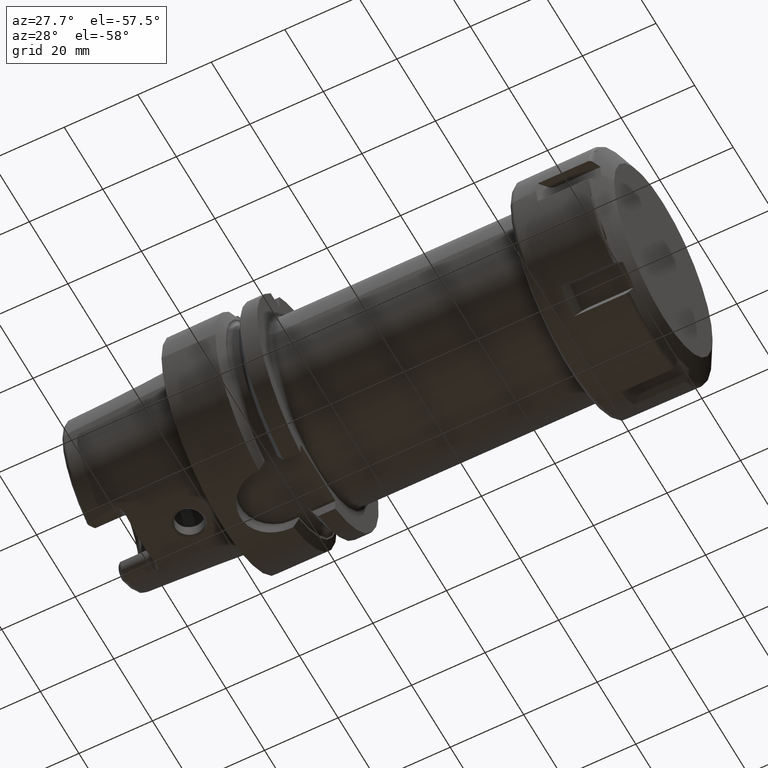
[diagram: clean part render]
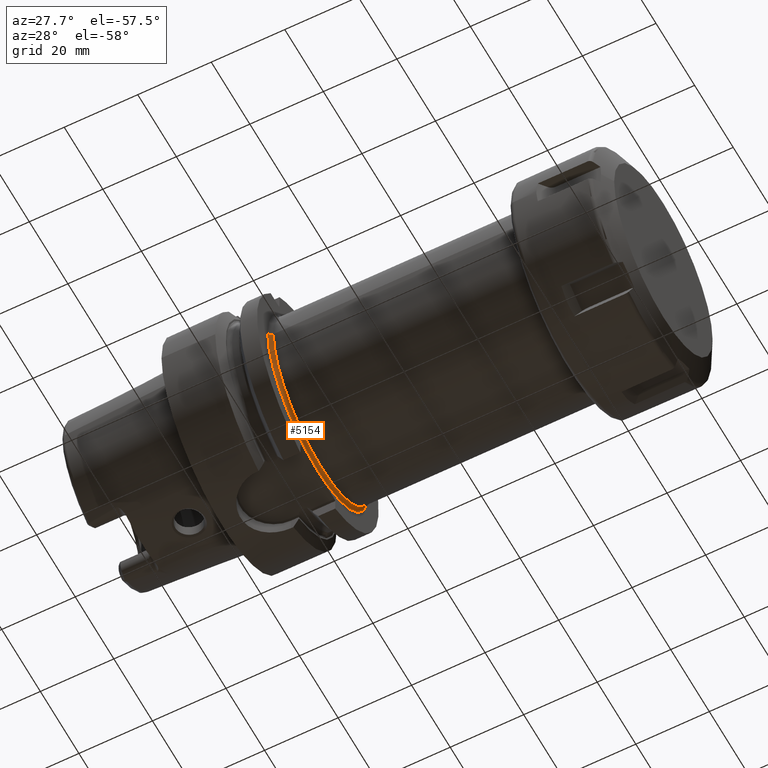
[diagram: same view with one face highlighted and labeled with its STEP entity id]
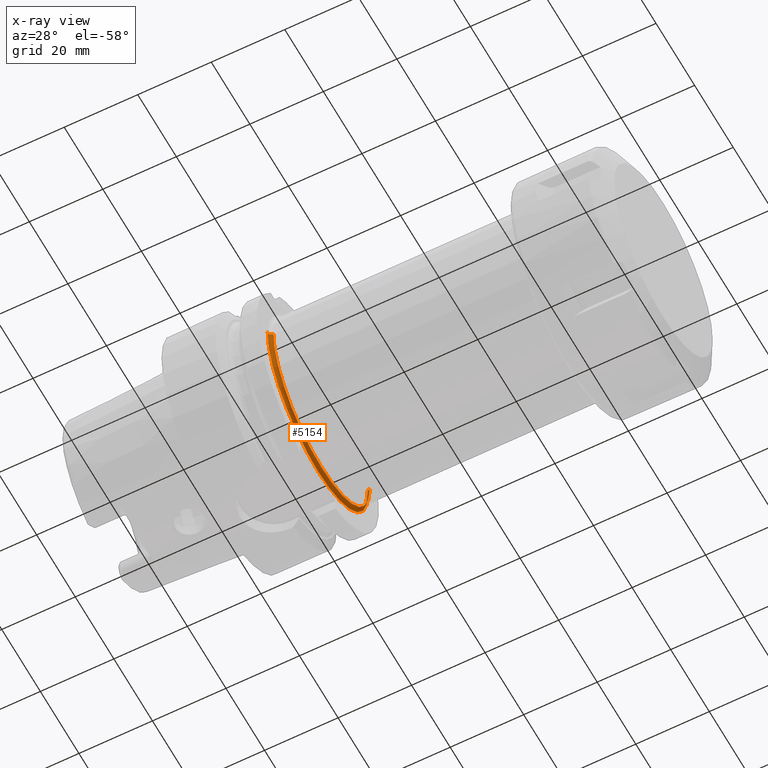
[diagram: x-ray of the same camera — body ghosted, the highlighted face saturated]
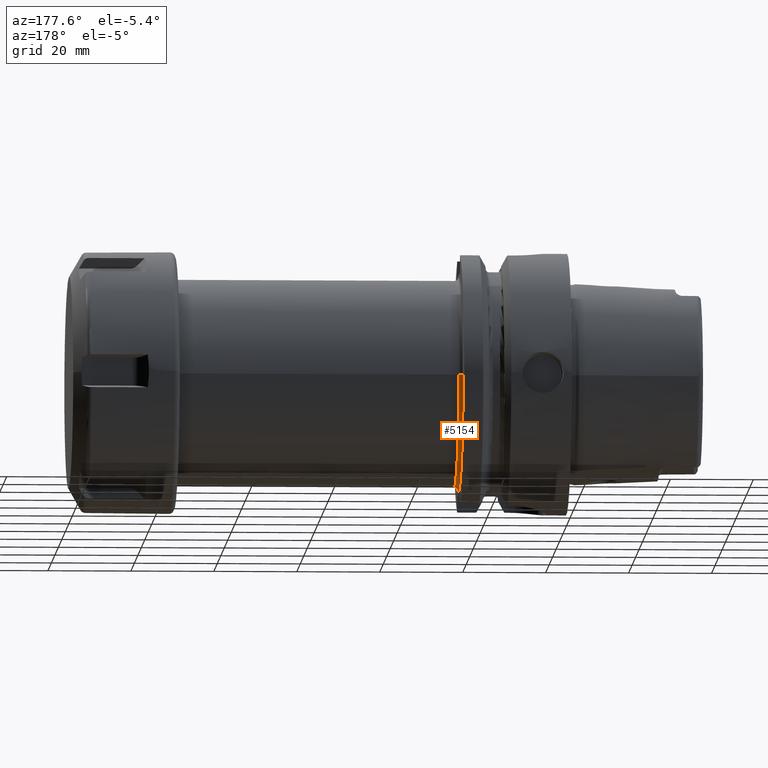
[diagram: same view with one face highlighted and labeled with its STEP entity id]
A machine part, auxiliary view. The second image highlights one B-rep face of the part: STEP entity #5154.
The next image is the same camera in x-ray: the body ghosted, the highlighted face saturated — about 1% of this face is hidden behind the body in this view.
A second angle (auxiliary view) of the same face is appended — the face is thin or edge-on in the first view.
In plain terms, the highlighted toroidal blend (fillet) surface has major radius 26 mm and minor (blend) radius 1 mm.
Its self-contained STEP definition (entity closure, byte-faithful):
#1708=CARTESIAN_POINT('',(2.6E1,0.E0,0.E0));
#1709=DIRECTION('',(1.E0,0.E0,0.E0));
#1710=DIRECTION('',(0.E0,-1.E0,0.E0));
#1711=AXIS2_PLACEMENT_3D('',#1708,#1709,#1710);
#1956=CARTESIAN_POINT('',(2.7E1,-2.6E1,-2.207956040223E-14));
#1957=DIRECTION('',(0.E0,0.E0,-1.E0));
#1958=DIRECTION('',(-1.E0,0.E0,0.E0));
#1959=AXIS2_PLACEMENT_3D('',#1956,#1957,#1958);
#1961=CARTESIAN_POINT('',(2.7E1,2.6E1,0.E0));
#1962=DIRECTION('',(0.E0,0.E0,1.E0));
#1963=DIRECTION('',(-1.E0,-1.065814103640E-14,0.E0));
#1964=AXIS2_PLACEMENT_3D('',#1961,#1962,#1963);
#1976=CARTESIAN_POINT('',(2.7E1,0.E0,0.E0));
#1977=DIRECTION('',(1.E0,0.E0,0.E0));
#1978=DIRECTION('',(0.E0,-1.E0,0.E0));
#1979=AXIS2_PLACEMENT_3D('',#1976,#1977,#1978);
#3036=CARTESIAN_POINT('',(2.6E1,-2.6E1,-2.946080226777E-14));
#3037=CARTESIAN_POINT('',(2.6E1,2.6E1,1.473040113388E-14));
#3038=VERTEX_POINT('',#3036);
#3039=VERTEX_POINT('',#3037);
#3040=CARTESIAN_POINT('',(2.7E1,-2.5E1,0.E0));
#3041=CARTESIAN_POINT('',(2.7E1,2.5E1,0.E0));
#3042=VERTEX_POINT('',#3040);
#3043=VERTEX_POINT('',#3041);
#5140=CARTESIAN_POINT('',(2.7E1,0.E0,0.E0));
#5141=DIRECTION('',(1.E0,0.E0,0.E0));
#5142=DIRECTION('',(0.E0,-9.999952710842E-1,3.075355152292E-3));
#5143=AXIS2_PLACEMENT_3D('',#5140,#5141,#5142);
#5144=TOROIDAL_SURFACE('',#5143,2.6E1,1.E0);
#5145=ORIENTED_EDGE('',*,*,#4847,.F.);
#5147=ORIENTED_EDGE('',*,*,#5146,.T.);
#5149=ORIENTED_EDGE('',*,*,#5148,.T.);
#5151=ORIENTED_EDGE('',*,*,#5150,.F.);
#5152=EDGE_LOOP('',(#5145,#5147,#5149,#5151));
#5153=FACE_OUTER_BOUND('',#5152,.F.);
#5154=ADVANCED_FACE('',(#5153),#5144,.F.);
#1712=CIRCLE('',#1711,2.6E1);
#1960=CIRCLE('',#1959,1.E0);
#1965=CIRCLE('',#1964,1.E0);
#1980=CIRCLE('',#1979,2.5E1);
#4847=EDGE_CURVE('',#3038,#3039,#1712,.T.);
#5146=EDGE_CURVE('',#3038,#3042,#1960,.T.);
#5148=EDGE_CURVE('',#3042,#3043,#1980,.T.);
#5150=EDGE_CURVE('',#3039,#3043,#1965,.T.);